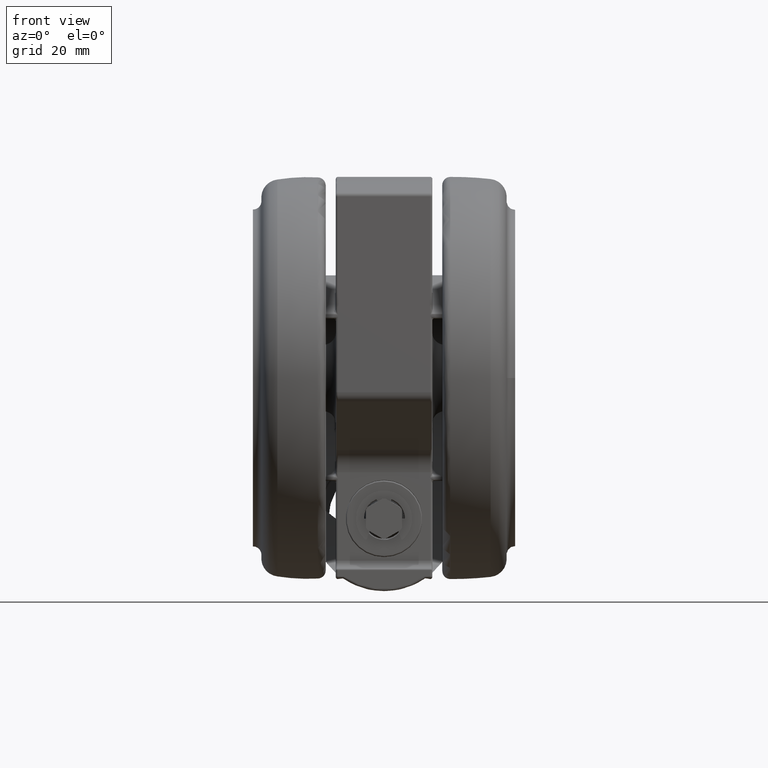
[diagram: clean part render]
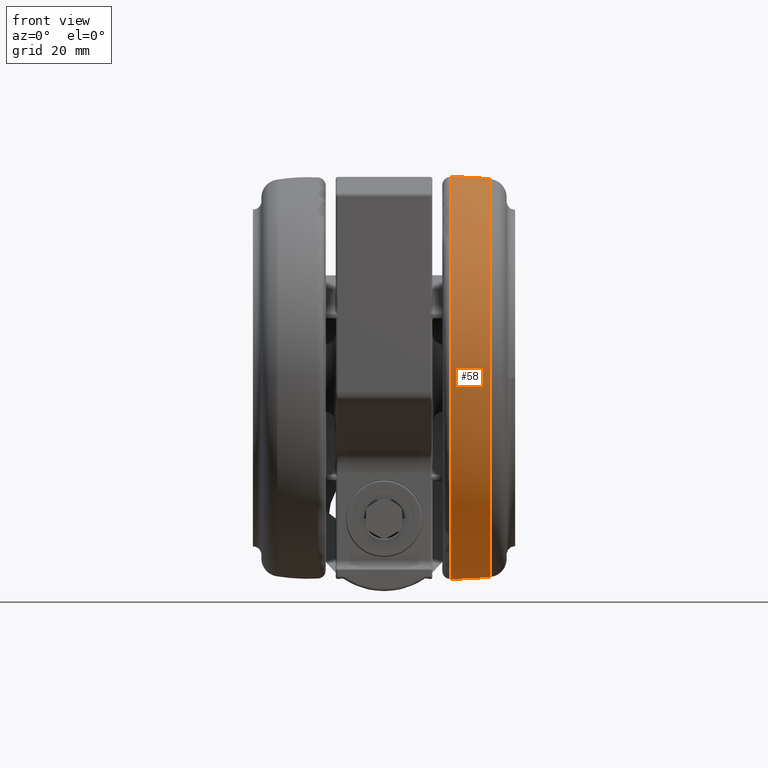
[diagram: same view with one face highlighted and labeled with its STEP entity id]
A machine part, front view. The second image highlights one B-rep face of the part: STEP entity #58.
In plain terms, the highlighted toroidal blend (fillet) surface has major radius 36.0786 mm and minor (blend) radius 86.08 mm.
Its self-contained STEP definition (entity closure, byte-faithful):
#58 = ADVANCED_FACE ( 'NONE', ( #19145 ), #66662, .T. ) ;
#1545 = ORIENTED_EDGE ( 'NONE', *, *, #47761, .T. ) ;
#2684 = CIRCLE ( 'NONE', #23897, 86.08000000000001300 ) ;
#6946 = VERTEX_POINT ( 'NONE', #53103 ) ;
#7993 = CARTESIAN_POINT ( 'NONE',  ( -3.785227660749448700E-013, 36.07862408987029600, -15.62461018795102100 ) ) ;
#9293 = CARTESIAN_POINT ( 'NONE',  ( -5.184571451396491500E-013, 49.99999999999997200, -16.11130803549124100 ) ) ;
#13104 = DIRECTION ( 'NONE',  ( 0.0000000000000000000, 0.0000000000000000000, 1.000000000000000000 ) ) ;
#14033 = DIRECTION ( 'NONE',  ( 1.049160758270772100E-014, -1.000000000000000000, 0.0000000000000000000 ) ) ;
#19145 = FACE_OUTER_BOUND ( 'NONE', #50828, .T. ) ;
#20808 = ORIENTED_EDGE ( 'NONE', *, *, #54286, .F. ) ;
#21037 = CARTESIAN_POINT ( 'NONE',  ( 0.0000000000000000000, -2.775557561562891400E-014, -16.11130803549124100 ) ) ;
#23897 = AXIS2_PLACEMENT_3D ( 'NONE', #32328, #73929, #38270 ) ;
#27070 = DIRECTION ( 'NONE',  ( 1.049160758270772100E-014, -1.000000000000000000, 0.0000000000000000000 ) ) ;
#27955 = AXIS2_PLACEMENT_3D ( 'NONE', #7993, #49713, #14033 ) ;
#32328 = CARTESIAN_POINT ( 'NONE',  ( 3.741044089240148700E-013, -36.07862408987035300, -15.62461018795102100 ) ) ;
#35105 = CIRCLE ( 'NONE', #55432, 50.00000000000000000 ) ;
#37684 = ORIENTED_EDGE ( 'NONE', *, *, #54996, .T. ) ;
#37953 = CARTESIAN_POINT ( 'NONE',  ( 5.245803791353860600E-013, -50.00000000000002100, -16.11130803549124100 ) ) ;
#38270 = DIRECTION ( 'NONE',  ( -1.036914290279298500E-014, 1.000000000000000000, 0.0000000000000000000 ) ) ;
#41036 = CIRCLE ( 'NONE', #64276, 49.47234381472849700 ) ;
#41739 = VERTEX_POINT ( 'NONE', #57434 ) ;
#47761 = EDGE_CURVE ( 'NONE', #51719, #65006, #35105, .T. ) ;
#48774 = CARTESIAN_POINT ( 'NONE',  ( 0.0000000000000000000, -2.775557561562891400E-014, -6.095796484960195500 ) ) ;
#49713 = DIRECTION ( 'NONE',  ( -1.000000000000000000, -1.049160758270772000E-014, 0.0000000000000000000 ) ) ;
#50828 = EDGE_LOOP ( 'NONE', ( #61231, #1545, #37684, #20808 ) ) ;
#51719 = VERTEX_POINT ( 'NONE', #9293 ) ;
#53103 = CARTESIAN_POINT ( 'NONE',  ( 5.190444175009287000E-013, -49.47234381472851100, -6.095796484960195500 ) ) ;
#53704 = DIRECTION ( 'NONE',  ( 0.0000000000000000000, 0.0000000000000000000, 1.000000000000000000 ) ) ;
#53719 = DIRECTION ( 'NONE',  ( 1.049160758270772000E-014, -1.000000000000000000, 0.0000000000000000000 ) ) ;
#53900 = CARTESIAN_POINT ( 'NONE',  ( 0.0000000000000000000, -2.775557561562891400E-014, -15.62461018795102100 ) ) ;
#54286 = EDGE_CURVE ( 'NONE', #41739, #6946, #41036, .T. ) ;
#54813 = DIRECTION ( 'NONE',  ( 1.049160758270771800E-014, -1.000000000000000000, 0.0000000000000000000 ) ) ;
#54996 = EDGE_CURVE ( 'NONE', #65006, #6946, #77230, .T. ) ;
#55432 = AXIS2_PLACEMENT_3D ( 'NONE', #21037, #62700, #27070 ) ;
#56966 = AXIS2_PLACEMENT_3D ( 'NONE', #53900, #53704, #53719 ) ;
#57434 = CARTESIAN_POINT ( 'NONE',  ( -5.129858027510262300E-013, 49.47234381472845400, -6.095796484960195500 ) ) ;
#61231 = ORIENTED_EDGE ( 'NONE', *, *, #74852, .F. ) ;
#62700 = DIRECTION ( 'NONE',  ( 0.0000000000000000000, 0.0000000000000000000, 1.000000000000000000 ) ) ;
#64276 = AXIS2_PLACEMENT_3D ( 'NONE', #48774, #13104, #54813 ) ;
#65006 = VERTEX_POINT ( 'NONE', #37953 ) ;
#66662 = TOROIDAL_SURFACE ( 'NONE', #56966, -36.07862408987032400, 86.08000000000001300 ) ;
#73929 = DIRECTION ( 'NONE',  ( 1.000000000000000000, 1.036914290279298500E-014, -0.0000000000000000000 ) ) ;
#74852 = EDGE_CURVE ( 'NONE', #51719, #41739, #2684, .T. ) ;
#77230 = CIRCLE ( 'NONE', #27955, 86.08000000000001300 ) ;